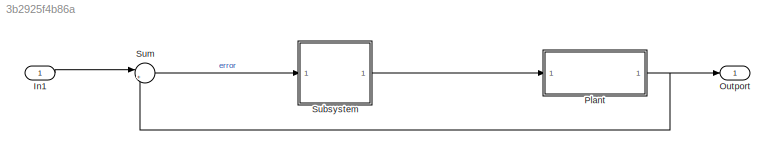
MODEL slx_3b2925f4b86a
KIND model
CONFIG AbsTol = auto
CONFIG EnableMultiTasking = off
CONFIG FixedStep = auto
CONFIG MaxStep = auto
CONFIG MinStep = auto
CONFIG RelTol = 1e-3
CONFIG SampleTimeConstraint = Unconstrained
CONFIG SolverName = VariableStepAuto
CONFIG StartTime = 0.0
CONFIG StopTime = 10.0
BLOCK [Inport] In1
BLOCK [Outport] Outport
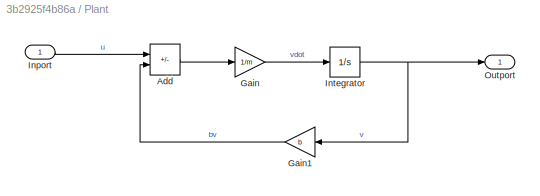
BLOCK [SubSystem] Plant
  Ports = [1, 1]
  RequestExecContextInheritance = off
BLOCK [Sum] Plant/Add
  IconShape = rectangular
  Inputs = +-
  Ports = [2, 1]
BLOCK [Gain] Plant/Gain
  Gain = 1/m
BLOCK [Gain] Plant/Gain1
  Gain = b
BLOCK [Inport] Plant/Inport
BLOCK [Integrator] Plant/Integrator
  Ports = [1, 1]
BLOCK [Outport] Plant/Outport
BLOCK [ModelReference] Subsystem
  ModelNameDialog = Subsystem
  ModelReferenceVersion = 1.12
  Ports = [1, 1]
BLOCK [Sum] Sum
  Inputs = |+-
  Ports = [2, 1]
LINE In1:1 -> Sum:1
LINE Plant/Add:1 -> Plant/Gain:1
LINE Plant/Gain1:1 -> Plant/Add:2
LINE Plant/Gain:1 -> Plant/Integrator:1
LINE Plant/Inport:1 -> Plant/Add:1
NET Plant/Integrator:1 -> Plant/Gain1:1, Plant/Outport:1
NET Plant:1 -> Outport:1, Sum:2
LINE Subsystem:1 -> Plant:1
LINE Sum:1 -> Subsystem:1
note: NET lines group one-source signal fan-out (src -> all destinations, sorted); 1:1 wires keep LINE
